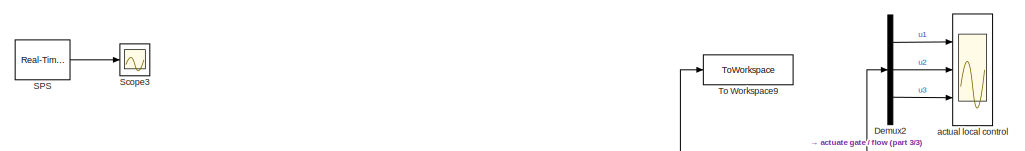
[diagram: root canvas - part 1/3, top left region]
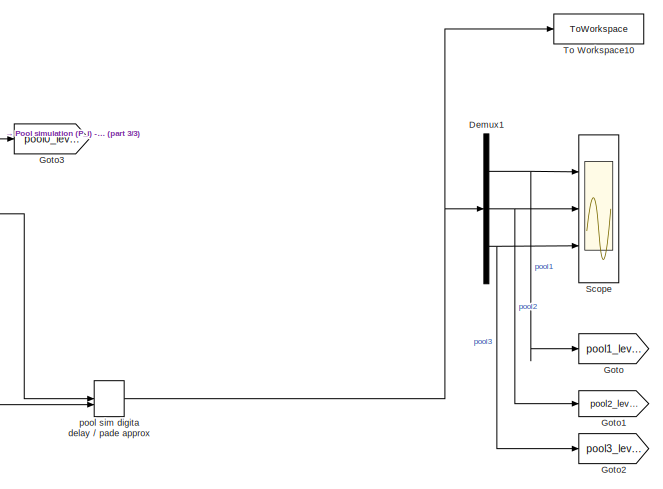
[diagram: root canvas - part 2/3, middle right region]
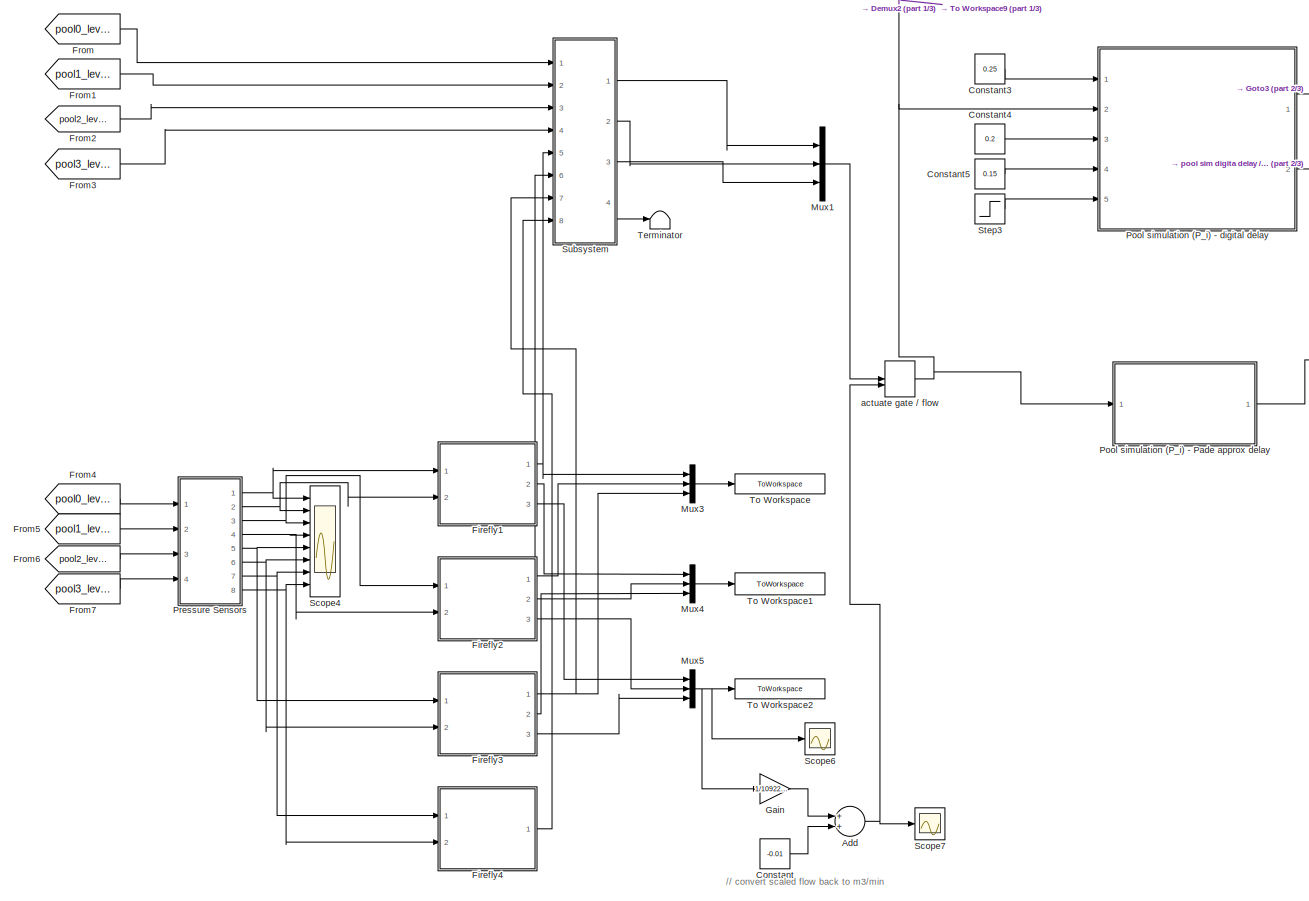
[diagram: root canvas - part 3/3, left side, full height]
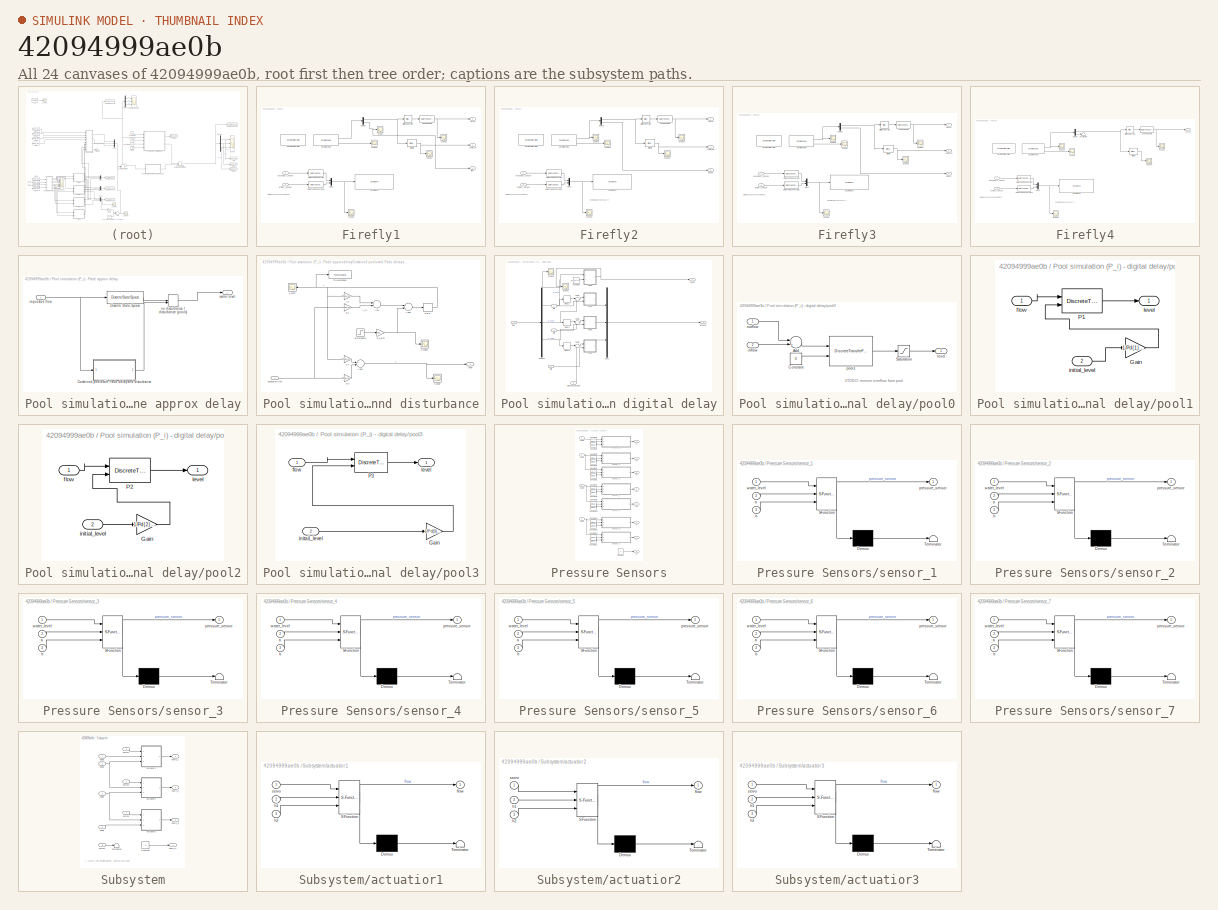
[diagram: thumbnail index - all 24 canvases of the model, root first then tree order]
MODEL slx_42094999ae0b
KIND model
CONFIG AbsTol = auto
CONFIG EnableMultiTasking = off
CONFIG FixedStep = 1/SPS
CONFIG MaxStep = auto
CONFIG MinStep = auto
CONFIG RelTol = 1e-3
CONFIG SampleTimeConstraint = Unconstrained
CONFIG Solver = FixedStepDiscrete
CONFIG SolverName = FixedStepDiscrete
CONFIG StartTime = 0.0
CONFIG StopTime = 60*30
BLOCK [Sum] Add
  InputSameDT = off
  OutDataTypeStr = Inherit: Inherit via internal rule
  Ports = [2, 1]
  SaturateOnIntegerOverflow = off
BLOCK [Constant] Constant
  Value = -0.01
BLOCK [Constant] Constant3
  SampleTime = -1
  Value = 0.25
BLOCK [Constant] Constant4
  Value = 0.2
BLOCK [Constant] Constant5
  Value = 0.15
BLOCK [Demux] Demux1
  DisplayOption = bar
  Outputs = 3
  Ports = [1, 3]
BLOCK [Demux] Demux2
  DisplayOption = bar
  Outputs = 3
  Ports = [1, 3]
BLOCK [SubSystem] Firefly1
  Ports = [2, 3]
  RequestExecContextInheritance = off
BLOCK [Reference] Firefly1/Bit Shift  REF=hdlsllib/Logic and Bit
Operations/Bit Shift
  Ports = [1, 1]
  SourceBlock = hdlsllib/Logic and Bit\nOperations/Bit Shift
  SourceProductBaseCode = SL
  SourceProductName = Simulink
  SourceType = Bit Shift
BLOCK [Reference] Firefly1/Bitwise Operator  REF=simulink/Logic and Bit
Operations/Bitwise
Operator
  Ports = [1, 1]
  SourceBlock = simulink/Logic and Bit\nOperations/Bitwise\nOperator
  SourceProductBaseCode = SL
  SourceProductName = Simulink
  SourceType = Bitwise Operator
BLOCK [DataTypeConversion] Firefly1/Cast To Double
  OutDataTypeStr = double
  RndMeth = Floor
  SaturateOnIntegerOverflow = off
BLOCK [DataTypeConversion] Firefly1/Data Type Conversion
  OutDataTypeStr = uint16
  RndMeth = Floor
  SaturateOnIntegerOverflow = off
BLOCK [DataTypeConversion] Firefly1/Data Type Conversion1
  OutDataTypeStr = uint16
  RndMeth = Floor
  SaturateOnIntegerOverflow = off
BLOCK [Demux] Firefly1/Demux
  DisplayOption = bar
  Outputs = 2
  Ports = [1, 2]
BLOCK [Mux] Firefly1/Mux3
  DisplayOption = bar
  Inputs = 2
  Ports = [2, 1]
BLOCK [Scope] Firefly1/Scope
  Floating = off
  NumInputPorts = 1
  Ports = [1]
  ScopeSpecificationString = Simulink.scopes.TimeScopeBlockCfg('CurrentConfiguration', extmgr.ConfigurationSet(extmgr.Configuration('Core','General UI',true),extmgr.Configuration('Core','Source UI',true),extmgr.Configuration('Sources','WiredSimulink',true,'DataLoggingVariableName','ScopeData1'),extmgr.Configuration('Visuals','Time Domain',true,'SerializedDisplays',{struct('MinYLimReal','150.375','MaxYLimReal','666.625','YLabe...<+1392ch>
BLOCK [Scope] Firefly1/Scope1
  Floating = off
  NumInputPorts = 1
  Ports = [1]
  ScopeSpecificationString = Simulink.scopes.TimeScopeBlockCfg('CurrentConfiguration', extmgr.ConfigurationSet(extmgr.Configuration('Core','General UI',true),extmgr.Configuration('Core','Source UI',true),extmgr.Configuration('Sources','WiredSimulink',true,'DataLoggingVariableName','ScopeData2'),extmgr.Configuration('Visuals','Time Domain',true,'SerializedDisplays',{struct('MinYLimReal','-2.125','MaxYLimReal','19.125','YLabelR...<+1429ch>
BLOCK [Scope] Firefly1/Scope2
  Floating = off
  NumInputPorts = 1
  Ports = [1]
  ScopeSpecificationString = Simulink.scopes.TimeScopeBlockCfg('CurrentConfiguration', extmgr.ConfigurationSet(extmgr.Configuration('Core','General UI',true),extmgr.Configuration('Core','Source UI',true),extmgr.Configuration('Sources','WiredSimulink',true,'DataLoggingVariableName','ScopeData3'),extmgr.Configuration('Visuals','Time Domain',true,'SerializedDisplays',{struct('MinYLimReal','0.5','MaxYLimReal','145.5','YLabelReal'...<+1388ch>
BLOCK [Scope] Firefly1/Scope5
  Floating = off
  NumInputPorts = 1
  Ports = [1]
  ScopeSpecificationString = Simulink.scopes.TimeScopeBlockCfg('CurrentConfiguration', extmgr.ConfigurationSet(extmgr.Configuration('Core','General UI',true),extmgr.Configuration('Core','Source UI',true),extmgr.Configuration('Sources','WiredSimulink',true,'DataLoggingVariableName','ScopeData2'),extmgr.Configuration('Visuals','Time Domain',true,'SerializedDisplays',{struct('MinYLimReal','-0.25','MaxYLimReal','2.25','YLabelReal...<+1429ch>  <repeated x3 — deduplicated; at blocks: Scope5>
BLOCK [Scope] Firefly1/Scope6
  Floating = off
  NumInputPorts = 1
  Ports = [1]
  ScopeSpecificationString = Simulink.scopes.TimeScopeBlockCfg('CurrentConfiguration', extmgr.ConfigurationSet(extmgr.Configuration('Core','General UI',true),extmgr.Configuration('Core','Source UI',true),extmgr.Configuration('Sources','WiredSimulink',true,'DataLoggingVariableName','ScopeData3'),extmgr.Configuration('Visuals','Time Domain',true,'SerializedDisplays',{struct('MinYLimReal','-0.125','MaxYLimReal','1.125','YLabelRe...<+1398ch>
BLOCK [Reference] Firefly1/Serial Configuration  REF=instrumentlib/Serial Configuration
  Ports = []
  Priority = -200000
  SourceBlock = instrumentlib/Serial Configuration
  SourceProductBaseCode = IC
  SourceProductName = Instrument Control Toolbox
  SourceType = Serial Configuration
BLOCK [Reference] Firefly1/Serial Receive  REF=instrumentlib/Serial Receive
  Ports = [0, 2]
  SourceBlock = instrumentlib/Serial Receive
  SourceProductBaseCode = IC
  SourceProductName = Instrument Control Toolbox
  SourceType = Serial Receive
BLOCK [Reference] Firefly1/Serial Send  REF=instrumentlib/Serial Send
  Ports = [1]
  SourceBlock = instrumentlib/Serial Send
  SourceProductBaseCode = IC
  SourceProductName = Instrument Control Toolbox
  SourceType = Serial Send
BLOCK [Outport] Firefly1/flow
  IconDisplay = Port number
  Port = 3
BLOCK [Inport] Firefly1/primary_sensor
  IconDisplay = Port number
BLOCK [Outport] Firefly1/radio_on
  IconDisplay = Port number
  Port = 2
BLOCK [Inport] Firefly1/secondary_sensor
  IconDisplay = Port number
  Port = 2
BLOCK [Outport] Firefly1/servo 
  IconDisplay = Port number
BLOCK [SubSystem] Firefly2
  Ports = [2, 3]
  RequestExecContextInheritance = off
BLOCK [Reference] Firefly2/Bit Shift  REF=hdlsllib/Logic and Bit
Operations/Bit Shift
  Ports = [1, 1]
  SourceBlock = hdlsllib/Logic and Bit\nOperations/Bit Shift
  SourceProductBaseCode = SL
  SourceProductName = Simulink
  SourceType = Bit Shift
BLOCK [Reference] Firefly2/Bitwise Operator  REF=simulink/Logic and Bit
Operations/Bitwise
Operator
  Ports = [1, 1]
  SourceBlock = simulink/Logic and Bit\nOperations/Bitwise\nOperator
  SourceProductBaseCode = SL
  SourceProductName = Simulink
  SourceType = Bitwise Operator
BLOCK [DataTypeConversion] Firefly2/Cast To Double
  OutDataTypeStr = double
  RndMeth = Floor
  SaturateOnIntegerOverflow = off
BLOCK [DataTypeConversion] Firefly2/Data Type Conversion
  OutDataTypeStr = uint16
  RndMeth = Floor
  SaturateOnIntegerOverflow = off
BLOCK [DataTypeConversion] Firefly2/Data Type Conversion1
  OutDataTypeStr = uint16
  RndMeth = Floor
  SaturateOnIntegerOverflow = off
BLOCK [Demux] Firefly2/Demux
  DisplayOption = bar
  Outputs = 2
  Ports = [1, 2]
BLOCK [Mux] Firefly2/Mux3
  DisplayOption = bar
  Inputs = 2
  Ports = [2, 1]
BLOCK [Scope] Firefly2/Scope1
  Floating = off
  NumInputPorts = 1
  Ports = [1]
  ScopeSpecificationString = Simulink.scopes.TimeScopeBlockCfg('CurrentConfiguration', extmgr.ConfigurationSet(extmgr.Configuration('Core','General UI',true),extmgr.Configuration('Core','Source UI',true),extmgr.Configuration('Sources','WiredSimulink',true,'DataLoggingVariableName','ScopeData4'),extmgr.Configuration('Visuals','Time Domain',true,'SerializedDisplays',{struct('MinYLimReal','-13.25','MaxYLimReal','119.25','YLabelR...<+1429ch>
BLOCK [Scope] Firefly2/Scope2
  Floating = off
  NumInputPorts = 1
  Ports = [1]
  ScopeSpecificationString = Simulink.scopes.TimeScopeBlockCfg('CurrentConfiguration', extmgr.ConfigurationSet(extmgr.Configuration('Core','General UI',true),extmgr.Configuration('Core','Source UI',true),extmgr.Configuration('Sources','WiredSimulink',true,'DataLoggingVariableName','ScopeData5'),extmgr.Configuration('Visuals','Time Domain',true,'SerializedDisplays',{struct('MinYLimReal','0.625','MaxYLimReal','144.375','YLabelR...<+1404ch>
BLOCK [Scope] Firefly2/Scope3
  Floating = off
  NumInputPorts = 1
  Ports = [1]
  ScopeSpecificationString = Simulink.scopes.TimeScopeBlockCfg('CurrentConfiguration', extmgr.ConfigurationSet(extmgr.Configuration('Core','General UI',true),extmgr.Configuration('Core','Source UI',true),extmgr.Configuration('Sources','WiredSimulink',true,'DataLoggingVariableName','ScopeData1'),extmgr.Configuration('Visuals','Time Domain',true,'SerializedDisplays',{struct('MinYLimReal','-2204.75','MaxYLimReal','21862.75','YLa...<+1433ch>
BLOCK [Scope] Firefly2/Scope5
  Floating = off
  NumInputPorts = 1
  Ports = [1]
BLOCK [Scope] Firefly2/Scope6
  Floating = off
  NumInputPorts = 1
  Ports = [1]
  ScopeSpecificationString = Simulink.scopes.TimeScopeBlockCfg('CurrentConfiguration', extmgr.ConfigurationSet(extmgr.Configuration('Core','General UI',true),extmgr.Configuration('Core','Source UI',true),extmgr.Configuration('Sources','WiredSimulink',true,'DataLoggingVariableName','ScopeData3'),extmgr.Configuration('Visuals','Time Domain',true,'SerializedDisplays',{struct('MinYLimReal','-0.125','MaxYLimReal','1.125','YLabelRe...<+1363ch>
BLOCK [Reference] Firefly2/Serial Configuration  REF=instrumentlib/Serial Configuration
  Ports = []
  Priority = -200000
  SourceBlock = instrumentlib/Serial Configuration
  SourceProductBaseCode = IC
  SourceProductName = Instrument Control Toolbox
  SourceType = Serial Configuration
BLOCK [Reference] Firefly2/Serial Receive  REF=instrumentlib/Serial Receive
  Ports = [0, 2]
  SourceBlock = instrumentlib/Serial Receive
  SourceProductBaseCode = IC
  SourceProductName = Instrument Control Toolbox
  SourceType = Serial Receive
BLOCK [Reference] Firefly2/Serial Send  REF=instrumentlib/Serial Send
  Ports = [1]
  SourceBlock = instrumentlib/Serial Send
  SourceProductBaseCode = IC
  SourceProductName = Instrument Control Toolbox
  SourceType = Serial Send
BLOCK [Outport] Firefly2/epoch
  IconDisplay = Port number
  Port = 3
BLOCK [Inport] Firefly2/primary_sensor
  IconDisplay = Port number
BLOCK [Outport] Firefly2/radio_on
  IconDisplay = Port number
  Port = 2
BLOCK [Inport] Firefly2/secondary_sensor
  IconDisplay = Port number
  Port = 2
BLOCK [Outport] Firefly2/servo 
  IconDisplay = Port number
BLOCK [SubSystem] Firefly3
  Ports = [2, 3]
  RequestExecContextInheritance = off
BLOCK [Reference] Firefly3/Bit Shift  REF=hdlsllib/Logic and Bit
Operations/Bit Shift
  Ports = [1, 1]
  SourceBlock = hdlsllib/Logic and Bit\nOperations/Bit Shift
  SourceProductBaseCode = SL
  SourceProductName = Simulink
  SourceType = Bit Shift
BLOCK [Reference] Firefly3/Bitwise Operator  REF=simulink/Logic and Bit
Operations/Bitwise
Operator
  Ports = [1, 1]
  SourceBlock = simulink/Logic and Bit\nOperations/Bitwise\nOperator
  SourceProductBaseCode = SL
  SourceProductName = Simulink
  SourceType = Bitwise Operator
BLOCK [DataTypeConversion] Firefly3/Cast To Double
  OutDataTypeStr = double
  RndMeth = Floor
  SaturateOnIntegerOverflow = off
BLOCK [DataTypeConversion] Firefly3/Data Type Conversion
  OutDataTypeStr = uint16
  RndMeth = Floor
  SaturateOnIntegerOverflow = off
BLOCK [DataTypeConversion] Firefly3/Data Type Conversion1
  OutDataTypeStr = uint16
  RndMeth = Floor
  SaturateOnIntegerOverflow = off
BLOCK [Demux] Firefly3/Demux
  DisplayOption = bar
  Outputs = 2
  Ports = [1, 2]
BLOCK [Mux] Firefly3/Mux3
  DisplayOption = bar
  Inputs = 2
  Ports = [2, 1]
BLOCK [Scope] Firefly3/Scope1
  Floating = off
  NumInputPorts = 1
  Ports = [1]
  ScopeSpecificationString = Simulink.scopes.TimeScopeBlockCfg('CurrentConfiguration', extmgr.ConfigurationSet(extmgr.Configuration('Core','General UI',true),extmgr.Configuration('Core','Source UI',true),extmgr.Configuration('Sources','WiredSimulink',true,'DataLoggingVariableName','ScopeData6'),extmgr.Configuration('Visuals','Time Domain',true,'SerializedDisplays',{struct('MinYLimReal','-3.25','MaxYLimReal','29.25','YLabelRea...<+1421ch>
BLOCK [Scope] Firefly3/Scope2
  Floating = off
  NumInputPorts = 1
  Ports = [1]
  ScopeSpecificationString = Simulink.scopes.TimeScopeBlockCfg('CurrentConfiguration', extmgr.ConfigurationSet(extmgr.Configuration('Core','General UI',true),extmgr.Configuration('Core','Source UI',true),extmgr.Configuration('Sources','WiredSimulink',true,'DataLoggingVariableName','ScopeData7'),extmgr.Configuration('Visuals','Time Domain',true,'SerializedDisplays',{struct('MinYLimReal','0.625','MaxYLimReal','144.375','YLabelR...<+1402ch>
BLOCK [Scope] Firefly3/Scope3
  Floating = off
  NumInputPorts = 1
  Ports = [1]
  ScopeSpecificationString = Simulink.scopes.TimeScopeBlockCfg('CurrentConfiguration', extmgr.ConfigurationSet(extmgr.Configuration('Core','General UI',true),extmgr.Configuration('Core','Source UI',true),extmgr.Configuration('Sources','WiredSimulink',true,'DataLoggingVariableName','ScopeData1'),extmgr.Configuration('Visuals','Time Domain',true,'SerializedDisplays',{struct('MinYLimReal','-2238.125','MaxYLimReal','22163.125','Y...<+1437ch>
BLOCK [Scope] Firefly3/Scope5
  Floating = off
  NumInputPorts = 1
  Ports = [1]
  ScopeSpecificationString = Simulink.scopes.TimeScopeBlockCfg('CurrentConfiguration', extmgr.ConfigurationSet(extmgr.Configuration('Core','General UI',true),extmgr.Configuration('Core','Source UI',true),extmgr.Configuration('Sources','WiredSimulink',true,'DataLoggingVariableName','ScopeData2'),extmgr.Configuration('Visuals','Time Domain',true,'SerializedDisplays',{struct('MinYLimReal','-2108.00000','MaxYLimReal','18972.00000...<+1473ch>
BLOCK [Scope] Firefly3/Scope6
  Floating = off
  NumInputPorts = 1
  Ports = [1]
  ScopeSpecificationString = Simulink.scopes.TimeScopeBlockCfg('CurrentConfiguration', extmgr.ConfigurationSet(extmgr.Configuration('Core','General UI',true),extmgr.Configuration('Core','Source UI',true),extmgr.Configuration('Sources','WiredSimulink',true,'DataLoggingVariableName','ScopeData3'),extmgr.Configuration('Visuals','Time Domain',true,'SerializedDisplays',{struct('MinYLimReal','0.9','MaxYLimReal','1.1','YLabelReal','...<+1341ch>
BLOCK [Reference] Firefly3/Serial Configuration  REF=instrumentlib/Serial Configuration
  Ports = []
  Priority = -200000
  SourceBlock = instrumentlib/Serial Configuration
  SourceProductBaseCode = IC
  SourceProductName = Instrument Control Toolbox
  SourceType = Serial Configuration
BLOCK [Reference] Firefly3/Serial Receive  REF=instrumentlib/Serial Receive
  Ports = [0, 2]
  SourceBlock = instrumentlib/Serial Receive
  SourceProductBaseCode = IC
  SourceProductName = Instrument Control Toolbox
  SourceType = Serial Receive
BLOCK [Reference] Firefly3/Serial Send  REF=instrumentlib/Serial Send
  Ports = [1]
  SourceBlock = instrumentlib/Serial Send
  SourceProductBaseCode = IC
  SourceProductName = Instrument Control Toolbox
  SourceType = Serial Send
BLOCK [Outport] Firefly3/epoch
  IconDisplay = Port number
  Port = 3
BLOCK [Inport] Firefly3/primary_sensor
  IconDisplay = Port number
BLOCK [Outport] Firefly3/radio_on
  IconDisplay = Port number
  Port = 2
BLOCK [Inport] Firefly3/secondary_sensor
  IconDisplay = Port number
  Port = 2
BLOCK [Outport] Firefly3/servo 
  IconDisplay = Port number
BLOCK [SubSystem] Firefly4
  Ports = [2, 1]
  RequestExecContextInheritance = off
BLOCK [Reference] Firefly4/Bit Shift  REF=hdlsllib/Logic and Bit
Operations/Bit Shift
  Ports = [1, 1]
  SourceBlock = hdlsllib/Logic and Bit\nOperations/Bit Shift
  SourceProductBaseCode = SL
  SourceProductName = Simulink
  SourceType = Bit Shift
BLOCK [Reference] Firefly4/Bitwise Operator  REF=simulink/Logic and Bit
Operations/Bitwise
Operator
  Ports = [1, 1]
  SourceBlock = simulink/Logic and Bit\nOperations/Bitwise\nOperator
  SourceProductBaseCode = SL
  SourceProductName = Simulink
  SourceType = Bitwise Operator
BLOCK [DataTypeConversion] Firefly4/Cast To Double
  OutDataTypeStr = double
  RndMeth = Floor
  SaturateOnIntegerOverflow = off
BLOCK [DataTypeConversion] Firefly4/Data Type Conversion
  OutDataTypeStr = uint16
  RndMeth = Floor
  SaturateOnIntegerOverflow = off
BLOCK [DataTypeConversion] Firefly4/Data Type Conversion1
  OutDataTypeStr = uint16
  RndMeth = Floor
  SaturateOnIntegerOverflow = off
BLOCK [Demux] Firefly4/Demux
  DisplayOption = bar
  Outputs = 2
  Ports = [1, 2]
BLOCK [Mux] Firefly4/Mux3
  DisplayOption = bar
  Inputs = 2
  Ports = [2, 1]
BLOCK [Scope] Firefly4/Scope1
  Floating = off
  NumInputPorts = 1
  Ports = [1]
  ScopeSpecificationString = Simulink.scopes.TimeScopeBlockCfg('CurrentConfiguration', extmgr.ConfigurationSet(extmgr.Configuration('Core','General UI',true),extmgr.Configuration('Core','Source UI',true),extmgr.Configuration('Sources','WiredSimulink',true,'DataLoggingVariableName','ScopeData8'),extmgr.Configuration('Visuals','Time Domain',true,'SerializedDisplays',{struct('MinYLimReal','-1.00000','MaxYLimReal','1.00000','YLab...<+1399ch>
BLOCK [Scope] Firefly4/Scope2
  Floating = off
  NumInputPorts = 1
  Ports = [1]
  ScopeSpecificationString = Simulink.scopes.TimeScopeBlockCfg('CurrentConfiguration', extmgr.ConfigurationSet(extmgr.Configuration('Core','General UI',true),extmgr.Configuration('Core','Source UI',true),extmgr.Configuration('Sources','WiredSimulink',true,'DataLoggingVariableName','ScopeData9'),extmgr.Configuration('Visuals','Time Domain',true,'SerializedDisplays',{struct('MinYLimReal','7.25','MaxYLimReal','84.75','YLabelReal...<+1373ch>
BLOCK [Scope] Firefly4/Scope3
  Floating = off
  NumInputPorts = 1
  Ports = [1]
  ScopeSpecificationString = Simulink.scopes.TimeScopeBlockCfg('CurrentConfiguration', extmgr.ConfigurationSet(extmgr.Configuration('Core','General UI',true),extmgr.Configuration('Core','Source UI',true),extmgr.Configuration('Sources','WiredSimulink',true,'DataLoggingVariableName','ScopeData1'),extmgr.Configuration('Visuals','Time Domain',true,'SerializedDisplays',{struct('MinYLimReal','-30.75','MaxYLimReal','286.75','YLabelR...<+1390ch>
BLOCK [Scope] Firefly4/Scope5
  Floating = off
  NumInputPorts = 1
  Ports = [1]
BLOCK [Scope] Firefly4/Scope6
  Floating = off
  NumInputPorts = 1
  Ports = [1]
  ScopeSpecificationString = Simulink.scopes.TimeScopeBlockCfg('CurrentConfiguration', extmgr.ConfigurationSet(extmgr.Configuration('Core','General UI',true),extmgr.Configuration('Core','Source UI',true),extmgr.Configuration('Sources','WiredSimulink',true,'DataLoggingVariableName','ScopeData3'),extmgr.Configuration('Visuals','Time Domain',true,'SerializedDisplays',{struct('MinYLimReal','0.9','MaxYLimReal','1.1','YLabelReal','...<+1341ch>
BLOCK [Reference] Firefly4/Serial Configuration  REF=instrumentlib/Serial Configuration
  Ports = []
  Priority = -200000
  SourceBlock = instrumentlib/Serial Configuration
  SourceProductBaseCode = IC
  SourceProductName = Instrument Control Toolbox
  SourceType = Serial Configuration
BLOCK [Reference] Firefly4/Serial Receive  REF=instrumentlib/Serial Receive
  Ports = [0, 2]
  SourceBlock = instrumentlib/Serial Receive
  SourceProductBaseCode = IC
  SourceProductName = Instrument Control Toolbox
  SourceType = Serial Receive
BLOCK [Reference] Firefly4/Serial Send  REF=instrumentlib/Serial Send
  Ports = [1]
  SourceBlock = instrumentlib/Serial Send
  SourceProductBaseCode = IC
  SourceProductName = Instrument Control Toolbox
  SourceType = Serial Send
BLOCK [Terminator] Firefly4/Terminator
BLOCK [Inport] Firefly4/primary_sensor
  IconDisplay = Port number
BLOCK [Inport] Firefly4/secondary_sensor
  IconDisplay = Port number
  Port = 2
BLOCK [Outport] Firefly4/servo 
  IconDisplay = Port number
BLOCK [From] From
  GotoTag = pool0_level
BLOCK [From] From1
  GotoTag = pool1_level
BLOCK [From] From2
  GotoTag = pool2_level
BLOCK [From] From3
  GotoTag = pool3_level
BLOCK [From] From4
  GotoTag = pool0_level
BLOCK [From] From5
  GotoTag = pool1_level
BLOCK [From] From6
  GotoTag = pool2_level
BLOCK [From] From7
  GotoTag = pool3_level
BLOCK [Gain] Gain
  Gain = 1/1092250
  OutDataTypeStr = Inherit: Inherit via internal rule
  ParamDataTypeStr = Inherit: Inherit via internal rule
  SaturateOnIntegerOverflow = off
BLOCK [Goto] Goto
  GotoTag = pool1_level
BLOCK [Goto] Goto1
  GotoTag = pool2_level
BLOCK [Goto] Goto2
  GotoTag = pool3_level
BLOCK [Goto] Goto3
  GotoTag = pool0_level
BLOCK [Mux] Mux1
  DisplayOption = bar
  Inputs = 3
  Ports = [3, 1]
BLOCK [Mux] Mux3
  DisplayOption = bar
  Inputs = 3
  Ports = [3, 1]
BLOCK [Mux] Mux4
  DisplayOption = bar
  Inputs = 3
  Ports = [3, 1]
BLOCK [Mux] Mux5
  DisplayOption = bar
  Inputs = 3
  Ports = [3, 1]
BLOCK [SubSystem] Pool simulation (P_i) - Pade approx delay
  Ports = [1, 1]
  RequestExecContextInheritance = off
BLOCK [SubSystem] Pool simulation (P_i) - Pade approx delay/Combined pools with Pade delay and disturbance
  Ports = [1, 1]
  RequestExecContextInheritance = off
BLOCK [Sum] Pool simulation (P_i) - Pade approx delay/Combined pools with Pade delay and disturbance/Add
  InputSameDT = off
  OutDataTypeStr = Inherit: Inherit via internal rule
  Ports = [2, 1]
  SaturateOnIntegerOverflow = off
BLOCK [Sum] Pool simulation (P_i) - Pade approx delay/Combined pools with Pade delay and disturbance/Add1
  InputSameDT = off
  OutDataTypeStr = Inherit: Inherit via internal rule
  Ports = [2, 1]
  SaturateOnIntegerOverflow = off
BLOCK [Sum] Pool simulation (P_i) - Pade approx delay/Combined pools with Pade delay and disturbance/Add2
  InputSameDT = off
  OutDataTypeStr = Inherit: Inherit via internal rule
  Ports = [2, 1]
  SaturateOnIntegerOverflow = off
BLOCK [Gain] Pool simulation (P_i) - Pade approx delay/Combined pools with Pade delay and disturbance/Ax
  Gain = comb_Pool_disc.A
  Multiplication = Matrix(K*u)
  OutDataTypeStr = Inherit: Inherit via internal rule
  ParamDataTypeStr = Inherit: Inherit via internal rule
  SaturateOnIntegerOverflow = off
BLOCK [Gain] Pool simulation (P_i) - Pade approx delay/Combined pools with Pade delay and disturbance/Bu
  Gain = comb_Pool_disc.B
  Multiplication = Matrix(K*u)
  OutDataTypeStr = Inherit: Inherit via internal rule
  ParamDataTypeStr = Inherit: Inherit via internal rule
  SaturateOnIntegerOverflow = off
BLOCK [Gain] Pool simulation (P_i) - Pade approx delay/Combined pools with Pade delay and disturbance/Cx
  Gain = comb_Pool_disc.C
  Multiplication = Matrix(K*u)
  OutDataTypeStr = Inherit: Inherit via internal rule
  ParamDataTypeStr = Inherit: Inherit via internal rule
  SaturateOnIntegerOverflow = off
BLOCK [Delay] Pool simulation (P_i) - Pade approx delay/Combined pools with Pade delay and disturbance/Delay
  DelayLength = 1
  InitialCondition = [0.25;0;0.2;0;0.15;0]
  InputPortMap = u0
  Ports = [1, 1]
BLOCK [Gain] Pool simulation (P_i) - Pade approx delay/Combined pools with Pade delay and disturbance/Du
  Gain = comb_Pool_disc.D
  Multiplication = Matrix(K*u)
  OutDataTypeStr = Inherit: Inherit via internal rule
  ParamDataTypeStr = Inherit: Inherit via internal rule
  SaturateOnIntegerOverflow = off
BLOCK [Gain] Pool simulation (P_i) - Pade approx delay/Combined pools with Pade delay and disturbance/Eu_dist
  Gain = [0; 0; 0; 0; 1; 0];
  Multiplication = Matrix(K*u)
  OutDataTypeStr = Inherit: Inherit via internal rule
  ParamDataTypeStr = Inherit: Inherit via internal rule
  SaturateOnIntegerOverflow = off
BLOCK [Scope] Pool simulation (P_i) - Pade approx delay/Combined pools with Pade delay and disturbance/Scope
  Floating = off
  NumInputPorts = 1
  Ports = [1]
  ScopeSpecificationString = Simulink.scopes.TimeScopeBlockCfg('CurrentConfiguration', extmgr.ConfigurationSet(extmgr.Configuration('Core','General UI',true),extmgr.Configuration('Core','Source UI',true),extmgr.Configuration('Sources','WiredSimulink',true,'DataLoggingVariableName','ScopeData1'),extmgr.Configuration('Visuals','Time Domain',true,'SerializedDisplays',{struct('MinYLimReal','0.12122','MaxYLimReal','0.26431','YLabe...<+1401ch>
BLOCK [Scope] Pool simulation (P_i) - Pade approx delay/Combined pools with Pade delay and disturbance/Scope1
  Floating = off
  NumInputPorts = 1
  Ports = [1]
  ScopeSpecificationString = Simulink.scopes.TimeScopeBlockCfg('CurrentConfiguration', extmgr.ConfigurationSet(extmgr.Configuration('Core','General UI',true),extmgr.Configuration('Core','Source UI',true),extmgr.Configuration('Sources','WiredSimulink',true,'DataLoggingVariableName','ScopeData2'),extmgr.Configuration('Visuals','Time Domain',true,'SerializedDisplays',{struct('MinYLimReal','-0.00123','MaxYLimReal','0.00014','YLab...<+1504ch>
BLOCK [ToWorkspace] Pool simulation (P_i) - Pade approx delay/Combined pools with Pade delay and disturbance/To Workspace
  FixptAsFi = on
  MaxDataPoints = inf
  Ports = [1]
  SampleTime = -1
  SaveFormat = Timeseries
  VariableName = x_pools
BLOCK [Step] Pool simulation (P_i) - Pade approx delay/Combined pools with Pade delay and disturbance/disturbance
  After = -0.015/0.2279*1/60* 1/SPS
  SampleTime = 0
  Time = 20
BLOCK [Outport] Pool simulation (P_i) - Pade approx delay/Combined pools with Pade delay and disturbance/level
  IconDisplay = Port number
BLOCK [Inport] Pool simulation (P_i) - Pade approx delay/Combined pools with Pade delay and disturbance/requested flow
  IconDisplay = Port number
BLOCK [Scope] Pool simulation (P_i) - Pade approx delay/Combined pools with Pade delay and disturbance/x_contr
  Floating = off
  NumInputPorts = 1
  Ports = [1]
  ScopeSpecificationString = Simulink.scopes.TimeScopeBlockCfg('CurrentConfiguration', extmgr.ConfigurationSet(extmgr.Configuration('Core','General UI',true),extmgr.Configuration('Core','Source UI',true),extmgr.Configuration('Sources','WiredSimulink',true,'DataLoggingVariableName','ScopeData4'),extmgr.Configuration('Visuals','Time Domain',true,'SerializedDisplays',{struct('MinYLimReal','-1.45192','MaxYLimReal','0.51843','YLab...<+1509ch>
BLOCK [DiscreteStateSpace] Pool simulation (P_i) - Pade approx delay/Discrete State-Space
  A = comb_Pool_disc.A
  B = comb_Pool_disc.B
  C = comb_Pool_disc.C
  D = comb_Pool_disc.D
  SampleTime = -1
BLOCK [ManualSwitch] Pool simulation (P_i) - Pade approx delay/no disturbance // disturbance (pools)
  CurrentSetting = 0
BLOCK [Inport] Pool simulation (P_i) - Pade approx delay/requested flow
  IconDisplay = Port number
BLOCK [Outport] Pool simulation (P_i) - Pade approx delay/water level
  IconDisplay = Port number
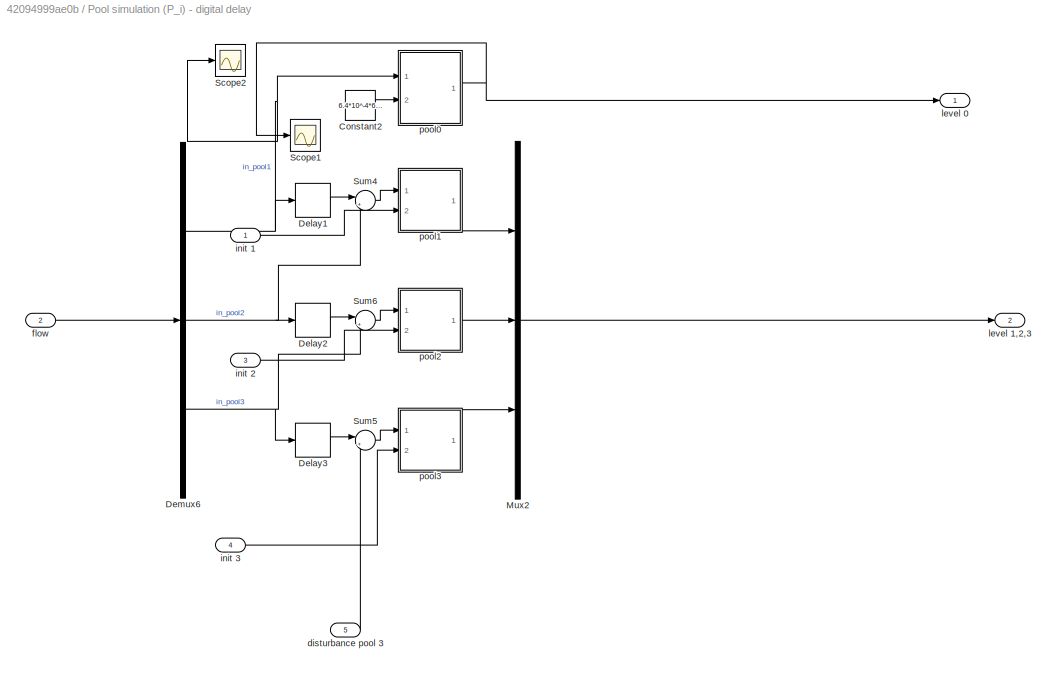
BLOCK [SubSystem] Pool simulation (P_i) - digital delay
  Ports = [5, 2]
  RequestExecContextInheritance = off
BLOCK [Constant] Pool simulation (P_i) - digital delay/Constant2
  Value = 6.4*10^-4*60*10
BLOCK [Delay] Pool simulation (P_i) - digital delay/Delay1
  DelayLength = ddelay(1)
  InputPortMap = u0
  Ports = [1, 1]
BLOCK [Delay] Pool simulation (P_i) - digital delay/Delay2
  DelayLength = ddelay(2)
  InputPortMap = u0
  Ports = [1, 1]
BLOCK [Delay] Pool simulation (P_i) - digital delay/Delay3
  DelayLength = ddelay(3)
  InputPortMap = u0
  Ports = [1, 1]
BLOCK [Demux] Pool simulation (P_i) - digital delay/Demux6
  DisplayOption = bar
  Outputs = 3
  Ports = [1, 3]
BLOCK [Mux] Pool simulation (P_i) - digital delay/Mux2
  DisplayOption = bar
  Inputs = 3
  Ports = [3, 1]
BLOCK [Scope] Pool simulation (P_i) - digital delay/Scope1
  Floating = off
  NumInputPorts = 1
  Ports = [1]
  ScopeSpecificationString = Simulink.scopes.TimeScopeBlockCfg('CurrentConfiguration', extmgr.ConfigurationSet(extmgr.Configuration('Core','General UI',true),extmgr.Configuration('Core','Source UI',true),extmgr.Configuration('Sources','WiredSimulink',true,'DataLoggingVariableName','ScopeData2'),extmgr.Configuration('Visuals','Time Domain',true,'SerializedDisplays',{struct('MinYLimReal','-0.0375','MaxYLimReal','0.3375','YLabel...<+1358ch>
BLOCK [Scope] Pool simulation (P_i) - digital delay/Scope2
  Floating = off
  NumInputPorts = 1
  Ports = [1]
  ScopeSpecificationString = Simulink.scopes.TimeScopeBlockCfg('CurrentConfiguration', extmgr.ConfigurationSet(extmgr.Configuration('Core','General UI',true),extmgr.Configuration('Core','Source UI',true),extmgr.Configuration('Sources','WiredSimulink',true,'DataLoggingVariableName','ScopeData3'),extmgr.Configuration('Visuals','Time Domain',true,'SerializedDisplays',{struct('MinYLimReal','-0.02371','MaxYLimReal','0.12911','YLab...<+1367ch>
BLOCK [Sum] Pool simulation (P_i) - digital delay/Sum4
  IconShape = round
  InputSameDT = off
  Inputs = |+-
  OutDataTypeStr = Inherit: Inherit via internal rule
  Ports = [2, 1]
  SaturateOnIntegerOverflow = off
BLOCK [Sum] Pool simulation (P_i) - digital delay/Sum5
  IconShape = round
  InputSameDT = off
  Inputs = |++
  OutDataTypeStr = Inherit: Inherit via internal rule
  Ports = [2, 1]
  SaturateOnIntegerOverflow = off
BLOCK [Sum] Pool simulation (P_i) - digital delay/Sum6
  IconShape = round
  InputSameDT = off
  Inputs = |+-
  OutDataTypeStr = Inherit: Inherit via internal rule
  Ports = [2, 1]
  SaturateOnIntegerOverflow = off
BLOCK [Inport] Pool simulation (P_i) - digital delay/disturbance pool 3
  IconDisplay = Port number
  Port = 5
BLOCK [Inport] Pool simulation (P_i) - digital delay/flow
  IconDisplay = Port number
  Port = 2
BLOCK [Inport] Pool simulation (P_i) - digital delay/init 1
  IconDisplay = Port number
BLOCK [Inport] Pool simulation (P_i) - digital delay/init 2
  IconDisplay = Port number
  Port = 3
BLOCK [Inport] Pool simulation (P_i) - digital delay/init 3
  IconDisplay = Port number
  Port = 4
BLOCK [Outport] Pool simulation (P_i) - digital delay/level 0
  IconDisplay = Port number
BLOCK [Outport] Pool simulation (P_i) - digital delay/level 1,2,3
  IconDisplay = Port number
  Port = 2
BLOCK [SubSystem] Pool simulation (P_i) - digital delay/pool0
  Ports = [2, 1]
  RequestExecContextInheritance = off
BLOCK [Sum] Pool simulation (P_i) - digital delay/pool0/Add
  InputSameDT = off
  Inputs = -+
  OutDataTypeStr = Inherit: Inherit via internal rule
  Ports = [2, 1]
  SaturateOnIntegerOverflow = off
BLOCK [Constant] Pool simulation (P_i) - digital delay/pool0/Constant
  Value = 0
BLOCK [Saturate] Pool simulation (P_i) - digital delay/pool0/Saturation
  InputPortMap = u0
  Ports = [1, 1]
  UpperLimit = 0.3
BLOCK [Inport] Pool simulation (P_i) - digital delay/pool0/inflow
  IconDisplay = Port number
  Port = 2
BLOCK [Outport] Pool simulation (P_i) - digital delay/pool0/level
  IconDisplay = Port number
BLOCK [Inport] Pool simulation (P_i) - digital delay/pool0/outflow
  IconDisplay = Port number
BLOCK [DiscreteTransferFcn] Pool simulation (P_i) - digital delay/pool0/pool1
  Denominator = Pd0.Denominator{1}
  InitialStatesSource = Input port
  InputPortMap = u0,p5
  Numerator = Pd0.Numerator{1}
  Ports = [2, 1]
BLOCK [SubSystem] Pool simulation (P_i) - digital delay/pool1
  Ports = [2, 1]
  RequestExecContextInheritance = off
BLOCK [Gain] Pool simulation (P_i) - digital delay/pool1/Gain
  Gain = 1/Pd{1}.Numerator{1}(2)
  OutDataTypeStr = Inherit: Inherit via internal rule
  ParamDataTypeStr = Inherit: Inherit via internal rule
  SaturateOnIntegerOverflow = off
BLOCK [DiscreteTransferFcn] Pool simulation (P_i) - digital delay/pool1/P1
  Denominator = Pd{1}.Denominator{1}
  InitialStatesSource = Input port
  InputPortMap = u0,p5
  Numerator = Pd{1}.Numerator{1}
  Ports = [2, 1]
BLOCK [Inport] Pool simulation (P_i) - digital delay/pool1/flow
  IconDisplay = Port number
BLOCK [Inport] Pool simulation (P_i) - digital delay/pool1/initial_level
  IconDisplay = Port number
  Port = 2
BLOCK [Outport] Pool simulation (P_i) - digital delay/pool1/level
  IconDisplay = Port number
BLOCK [SubSystem] Pool simulation (P_i) - digital delay/pool2
  Ports = [2, 1]
  RequestExecContextInheritance = off
BLOCK [Gain] Pool simulation (P_i) - digital delay/pool2/Gain
  Gain = 1/Pd{2}.Numerator{1}(2)
  OutDataTypeStr = Inherit: Inherit via internal rule
  ParamDataTypeStr = Inherit: Inherit via internal rule
  SaturateOnIntegerOverflow = off
BLOCK [DiscreteTransferFcn] Pool simulation (P_i) - digital delay/pool2/P2
  Denominator = Pd{2}.Denominator{1}
  InitialStatesSource = Input port
  InputPortMap = u0,p5
  Numerator = Pd{2}.Numerator{1}
  Ports = [2, 1]
BLOCK [Inport] Pool simulation (P_i) - digital delay/pool2/flow
  IconDisplay = Port number
BLOCK [Inport] Pool simulation (P_i) - digital delay/pool2/initial_level
  IconDisplay = Port number
  Port = 2
BLOCK [Outport] Pool simulation (P_i) - digital delay/pool2/level
  IconDisplay = Port number
BLOCK [SubSystem] Pool simulation (P_i) - digital delay/pool3
  Ports = [2, 1]
  RequestExecContextInheritance = off
BLOCK [Gain] Pool simulation (P_i) - digital delay/pool3/Gain
  Gain = 1/Pd{3}.Numerator{1}(2)
  OutDataTypeStr = Inherit: Inherit via internal rule
  ParamDataTypeStr = Inherit: Inherit via internal rule
  SaturateOnIntegerOverflow = off
BLOCK [DiscreteTransferFcn] Pool simulation (P_i) - digital delay/pool3/P3
  Denominator = Pd{3}.Denominator{1}
  InitialStatesSource = Input port
  InputPortMap = u0,p5
  Numerator = Pd{3}.Numerator{1}
  Ports = [2, 1]
BLOCK [Inport] Pool simulation (P_i) - digital delay/pool3/flow
  IconDisplay = Port number
BLOCK [Inport] Pool simulation (P_i) - digital delay/pool3/initail_level 
  IconDisplay = Port number
  Port = 2
BLOCK [Outport] Pool simulation (P_i) - digital delay/pool3/level
  IconDisplay = Port number
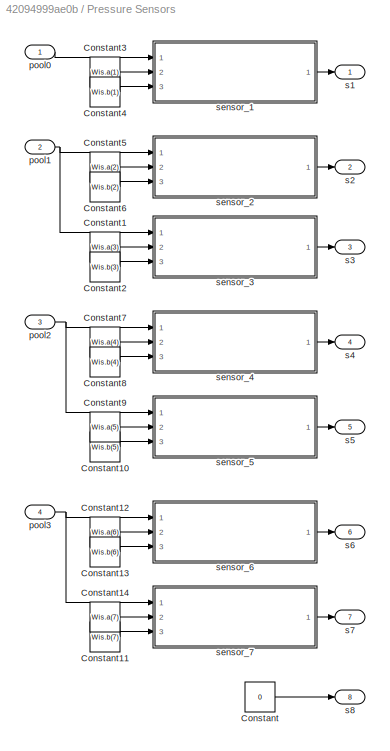
BLOCK [SubSystem] Pressure Sensors
  Ports = [4, 8]
  RequestExecContextInheritance = off
BLOCK [Constant] Pressure Sensors/Constant
  Value = 0
BLOCK [Constant] Pressure Sensors/Constant1
  Value = Wis.a(3)
BLOCK [Constant] Pressure Sensors/Constant10
  Value = Wis.b(5)
BLOCK [Constant] Pressure Sensors/Constant11
  Value = Wis.b(7)
BLOCK [Constant] Pressure Sensors/Constant12
  Value = Wis.a(6)
BLOCK [Constant] Pressure Sensors/Constant13
  Value = Wis.b(6)
BLOCK [Constant] Pressure Sensors/Constant14
  Value = Wis.a(7)
BLOCK [Constant] Pressure Sensors/Constant2
  Value = Wis.b(3)
BLOCK [Constant] Pressure Sensors/Constant3
  Value = Wis.a(1)
BLOCK [Constant] Pressure Sensors/Constant4
  Value = Wis.b(1)
BLOCK [Constant] Pressure Sensors/Constant5
  Value = Wis.a(2)
BLOCK [Constant] Pressure Sensors/Constant6
  Value = Wis.b(2)
BLOCK [Constant] Pressure Sensors/Constant7
  Value = Wis.a(4)
BLOCK [Constant] Pressure Sensors/Constant8
  Value = Wis.b(4)
BLOCK [Constant] Pressure Sensors/Constant9
  Value = Wis.a(5)
BLOCK [Inport] Pressure Sensors/pool0
  IconDisplay = Port number
BLOCK [Inport] Pressure Sensors/pool1
  IconDisplay = Port number
  Port = 2
BLOCK [Inport] Pressure Sensors/pool2
  IconDisplay = Port number
  Port = 3
BLOCK [Inport] Pressure Sensors/pool3
  IconDisplay = Port number
  Port = 4
BLOCK [Outport] Pressure Sensors/s1
  IconDisplay = Port number
BLOCK [Outport] Pressure Sensors/s2
  IconDisplay = Port number
  Port = 2
BLOCK [Outport] Pressure Sensors/s3
  IconDisplay = Port number
  Port = 3
BLOCK [Outport] Pressure Sensors/s4
  IconDisplay = Port number
  Port = 4
BLOCK [Outport] Pressure Sensors/s5
  IconDisplay = Port number
  Port = 5
BLOCK [Outport] Pressure Sensors/s6
  IconDisplay = Port number
  Port = 6
BLOCK [Outport] Pressure Sensors/s7
  IconDisplay = Port number
  Port = 7
BLOCK [Outport] Pressure Sensors/s8
  IconDisplay = Port number
  Port = 8
BLOCK [SubSystem] Pressure Sensors/sensor_1
  ErrorFcn = Stateflow.Translate.translate
  PermitHierarchicalResolution = ExplicitOnly
  Ports = [3, 1]
  RequestExecContextInheritance = off
  SFBlockType = MATLAB Function
  TreatAsAtomicUnit = on
BLOCK [Demux] Pressure Sensors/sensor_1/ Demux 
  Outputs = 1
  Ports = [1, 1]
BLOCK [S-Function] Pressure Sensors/sensor_1/ SFunction 
  EnableBusSupport = on
  FunctionName = sf_sfun
  PortCounts = [3 2]
  Ports = [3, 2]
  SFcnIsStateOwnerBlock = off
  SFunctionDeploymentMode = off
  Tag = Stateflow S-Function 5
BLOCK [Terminator] Pressure Sensors/sensor_1/ Terminator 
BLOCK [Inport] Pressure Sensors/sensor_1/a
  IconDisplay = Port number
  Port = 2
BLOCK [Inport] Pressure Sensors/sensor_1/b
  IconDisplay = Port number
  Port = 3
BLOCK [Outport] Pressure Sensors/sensor_1/pressure_sensor
  IconDisplay = Port number
BLOCK [Inport] Pressure Sensors/sensor_1/water_level
  IconDisplay = Port number
BLOCK [SubSystem] Pressure Sensors/sensor_2
  ErrorFcn = Stateflow.Translate.translate
  PermitHierarchicalResolution = ExplicitOnly
  Ports = [3, 1]
  RequestExecContextInheritance = off
  SFBlockType = MATLAB Function
  TreatAsAtomicUnit = on
BLOCK [Demux] Pressure Sensors/sensor_2/ Demux 
  Outputs = 1
  Ports = [1, 1]
BLOCK [S-Function] Pressure Sensors/sensor_2/ SFunction 
  EnableBusSupport = on
  FunctionName = sf_sfun
  PortCounts = [3 2]
  Ports = [3, 2]
  SFcnIsStateOwnerBlock = off
  SFunctionDeploymentMode = off
  Tag = Stateflow S-Function 6
BLOCK [Terminator] Pressure Sensors/sensor_2/ Terminator 
BLOCK [Inport] Pressure Sensors/sensor_2/a
  IconDisplay = Port number
  Port = 2
BLOCK [Inport] Pressure Sensors/sensor_2/b
  IconDisplay = Port number
  Port = 3
BLOCK [Outport] Pressure Sensors/sensor_2/pressure_sensor
  IconDisplay = Port number
BLOCK [Inport] Pressure Sensors/sensor_2/water_level
  IconDisplay = Port number
BLOCK [SubSystem] Pressure Sensors/sensor_3
  ErrorFcn = Stateflow.Translate.translate
  PermitHierarchicalResolution = ExplicitOnly
  Ports = [3, 1]
  RequestExecContextInheritance = off
  SFBlockType = MATLAB Function
  TreatAsAtomicUnit = on
BLOCK [Demux] Pressure Sensors/sensor_3/ Demux 
  Outputs = 1
  Ports = [1, 1]
BLOCK [S-Function] Pressure Sensors/sensor_3/ SFunction 
  EnableBusSupport = on
  FunctionName = sf_sfun
  PortCounts = [3 2]
  Ports = [3, 2]
  SFcnIsStateOwnerBlock = off
  SFunctionDeploymentMode = off
  Tag = Stateflow S-Function 7
BLOCK [Terminator] Pressure Sensors/sensor_3/ Terminator 
BLOCK [Inport] Pressure Sensors/sensor_3/a
  IconDisplay = Port number
  Port = 2
BLOCK [Inport] Pressure Sensors/sensor_3/b
  IconDisplay = Port number
  Port = 3
BLOCK [Outport] Pressure Sensors/sensor_3/pressure_sensor
  IconDisplay = Port number
BLOCK [Inport] Pressure Sensors/sensor_3/water_level
  IconDisplay = Port number
BLOCK [SubSystem] Pressure Sensors/sensor_4
  ErrorFcn = Stateflow.Translate.translate
  PermitHierarchicalResolution = ExplicitOnly
  Ports = [3, 1]
  RequestExecContextInheritance = off
  SFBlockType = MATLAB Function
  TreatAsAtomicUnit = on
BLOCK [Demux] Pressure Sensors/sensor_4/ Demux 
  Outputs = 1
  Ports = [1, 1]
BLOCK [S-Function] Pressure Sensors/sensor_4/ SFunction 
  EnableBusSupport = on
  FunctionName = sf_sfun
  PortCounts = [3 2]
  Ports = [3, 2]
  SFcnIsStateOwnerBlock = off
  SFunctionDeploymentMode = off
  Tag = Stateflow S-Function 8
BLOCK [Terminator] Pressure Sensors/sensor_4/ Terminator 
BLOCK [Inport] Pressure Sensors/sensor_4/a
  IconDisplay = Port number
  Port = 2
BLOCK [Inport] Pressure Sensors/sensor_4/b
  IconDisplay = Port number
  Port = 3
BLOCK [Outport] Pressure Sensors/sensor_4/pressure_sensor
  IconDisplay = Port number
BLOCK [Inport] Pressure Sensors/sensor_4/water_level
  IconDisplay = Port number
BLOCK [SubSystem] Pressure Sensors/sensor_5
  ErrorFcn = Stateflow.Translate.translate
  PermitHierarchicalResolution = ExplicitOnly
  Ports = [3, 1]
  RequestExecContextInheritance = off
  SFBlockType = MATLAB Function
  TreatAsAtomicUnit = on
BLOCK [Demux] Pressure Sensors/sensor_5/ Demux 
  Outputs = 1
  Ports = [1, 1]
BLOCK [S-Function] Pressure Sensors/sensor_5/ SFunction 
  EnableBusSupport = on
  FunctionName = sf_sfun
  PortCounts = [3 2]
  Ports = [3, 2]
  SFcnIsStateOwnerBlock = off
  SFunctionDeploymentMode = off
  Tag = Stateflow S-Function 9
BLOCK [Terminator] Pressure Sensors/sensor_5/ Terminator 
BLOCK [Inport] Pressure Sensors/sensor_5/a
  IconDisplay = Port number
  Port = 2
BLOCK [Inport] Pressure Sensors/sensor_5/b
  IconDisplay = Port number
  Port = 3
BLOCK [Outport] Pressure Sensors/sensor_5/pressure_sensor
  IconDisplay = Port number
BLOCK [Inport] Pressure Sensors/sensor_5/water_level
  IconDisplay = Port number
BLOCK [SubSystem] Pressure Sensors/sensor_6
  ErrorFcn = Stateflow.Translate.translate
  PermitHierarchicalResolution = ExplicitOnly
  Ports = [3, 1]
  RequestExecContextInheritance = off
  SFBlockType = MATLAB Function
  TreatAsAtomicUnit = on
BLOCK [Demux] Pressure Sensors/sensor_6/ Demux 
  Outputs = 1
  Ports = [1, 1]
BLOCK [S-Function] Pressure Sensors/sensor_6/ SFunction 
  EnableBusSupport = on
  FunctionName = sf_sfun
  PortCounts = [3 2]
  Ports = [3, 2]
  SFcnIsStateOwnerBlock = off
  SFunctionDeploymentMode = off
  Tag = Stateflow S-Function 10
BLOCK [Terminator] Pressure Sensors/sensor_6/ Terminator 
BLOCK [Inport] Pressure Sensors/sensor_6/a
  IconDisplay = Port number
  Port = 2
BLOCK [Inport] Pressure Sensors/sensor_6/b
  IconDisplay = Port number
  Port = 3
BLOCK [Outport] Pressure Sensors/sensor_6/pressure_sensor
  IconDisplay = Port number
BLOCK [Inport] Pressure Sensors/sensor_6/water_level
  IconDisplay = Port number
BLOCK [SubSystem] Pressure Sensors/sensor_7
  ErrorFcn = Stateflow.Translate.translate
  PermitHierarchicalResolution = ExplicitOnly
  Ports = [3, 1]
  RequestExecContextInheritance = off
  SFBlockType = MATLAB Function
  TreatAsAtomicUnit = on
BLOCK [Demux] Pressure Sensors/sensor_7/ Demux 
  Outputs = 1
  Ports = [1, 1]
BLOCK [S-Function] Pressure Sensors/sensor_7/ SFunction 
  EnableBusSupport = on
  FunctionName = sf_sfun
  PortCounts = [3 2]
  Ports = [3, 2]
  SFcnIsStateOwnerBlock = off
  SFunctionDeploymentMode = off
  Tag = Stateflow S-Function 11
BLOCK [Terminator] Pressure Sensors/sensor_7/ Terminator 
BLOCK [Inport] Pressure Sensors/sensor_7/a
  IconDisplay = Port number
  Port = 2
BLOCK [Inport] Pressure Sensors/sensor_7/b
  IconDisplay = Port number
  Port = 3
BLOCK [Outport] Pressure Sensors/sensor_7/pressure_sensor
  IconDisplay = Port number
BLOCK [Inport] Pressure Sensors/sensor_7/water_level
  IconDisplay = Port number
BLOCK [Reference] SPS  REF=sldrtlib/Real-Time
Synchronization
  Ports = [0, 1]
  SourceBlock = sldrtlib/Real-Time\nSynchronization
  SourceProductBaseCode = WT
  SourceProductName = Simulink Desktop Real-Time
  SourceType = Simulink Desktop Real-Time Synchronization
BLOCK [Scope] Scope
  Floating = off
  NumInputPorts = 3
  Ports = [3]
  ScopeSpecificationString = Simulink.scopes.TimeScopeBlockCfg('CurrentConfiguration', extmgr.ConfigurationSet(extmgr.Configuration('Core','General UI',true),extmgr.Configuration('Core','Source UI',true),extmgr.Configuration('Sources','WiredSimulink',true),extmgr.Configuration('Visuals','Time Domain',true,'SerializedDisplays',{struct('MinYLimReal','0.11895','MaxYLimReal','0.26456','YLabelReal','','MinYLimMag','0.11895','MaxYL...<+1396ch>
BLOCK [Scope] Scope3
  Floating = off
  NumInputPorts = 1
  Ports = [1]
  ScopeSpecificationString = Simulink.scopes.TimeScopeBlockCfg('CurrentConfiguration', extmgr.ConfigurationSet(extmgr.Configuration('Core','General UI',true),extmgr.Configuration('Core','Source UI',true),extmgr.Configuration('Sources','WiredSimulink',true,'DataLoggingVariableName','ScopeData4'),extmgr.Configuration('Visuals','Time Domain',true,'SerializedDisplays',{struct('MinYLimReal','-1.00000','MaxYLimReal','1.00000','YLab...<+1366ch>
BLOCK [Scope] Scope4
  Floating = off
  NumInputPorts = 8
  Ports = [8]
  ScopeSpecificationString = Simulink.scopes.TimeScopeBlockCfg('CurrentConfiguration', extmgr.ConfigurationSet(extmgr.Configuration('Core','General UI',true),extmgr.Configuration('Core','Source UI',true),extmgr.Configuration('Sources','WiredSimulink',true,'DataLoggingVariableName','ScopeData1'),extmgr.Configuration('Visuals','Time Domain',true,'SerializedDisplays',{struct('MinYLimReal','-2132.625','MaxYLimReal','19193.625','Y...<+1889ch>
BLOCK [Scope] Scope6
  Floating = off
  NumInputPorts = 1
  Ports = [1]
  ScopeSpecificationString = Simulink.scopes.TimeScopeBlockCfg('CurrentConfiguration', extmgr.ConfigurationSet(extmgr.Configuration('Core','General UI',true),extmgr.Configuration('Core','Source UI',true),extmgr.Configuration('Sources','WiredSimulink',true,'DataLoggingVariableName','ScopeData1'),extmgr.Configuration('Visuals','Time Domain',true,'SerializedDisplays',{struct('MinYLimReal','4294.375','MaxYLimReal','70160.625','YL...<+1433ch>
BLOCK [Scope] Scope7
  Floating = off
  NumInputPorts = 1
  Ports = [1]
  ScopeSpecificationString = Simulink.scopes.TimeScopeBlockCfg('CurrentConfiguration', extmgr.ConfigurationSet(extmgr.Configuration('Core','General UI',true),extmgr.Configuration('Core','Source UI',true),extmgr.Configuration('Sources','WiredSimulink',true,'DataLoggingVariableName','ScopeData2'),extmgr.Configuration('Visuals','Time Domain',true,'SerializedDisplays',{struct('MinYLimReal','-0.01698','MaxYLimReal','0.05279','YLab...<+1453ch>
BLOCK [Step] Step3
  After = -0.015
  SampleTime = 0
  Time = 20
BLOCK [SubSystem] Subsystem
  Ports = [8, 4]
  RequestExecContextInheritance = off
BLOCK [Constant] Subsystem/Constant
  Value = 0
BLOCK [Terminator] Subsystem/Terminator
BLOCK [SubSystem] Subsystem/actuatior1
  ErrorFcn = Stateflow.Translate.translate
  PermitHierarchicalResolution = ExplicitOnly
  Ports = [3, 1]
  RequestExecContextInheritance = off
  SFBlockType = MATLAB Function
  TreatAsAtomicUnit = on
BLOCK [Demux] Subsystem/actuatior1/ Demux 
  Outputs = 1
  Ports = [1, 1]
BLOCK [S-Function] Subsystem/actuatior1/ SFunction 
  EnableBusSupport = on
  FunctionName = sf_sfun
  PortCounts = [3 2]
  Ports = [3, 2]
  SFcnIsStateOwnerBlock = off
  SFunctionDeploymentMode = off
  Tag = Stateflow S-Function 12
BLOCK [Terminator] Subsystem/actuatior1/ Terminator 
BLOCK [Outport] Subsystem/actuatior1/flow
  IconDisplay = Port number
BLOCK [Inport] Subsystem/actuatior1/h1
  IconDisplay = Port number
  Port = 2
BLOCK [Inport] Subsystem/actuatior1/h2
  IconDisplay = Port number
  Port = 3
BLOCK [Inport] Subsystem/actuatior1/servo
  IconDisplay = Port number
BLOCK [SubSystem] Subsystem/actuatior2
  ErrorFcn = Stateflow.Translate.translate
  PermitHierarchicalResolution = ExplicitOnly
  Ports = [3, 1]
  RequestExecContextInheritance = off
  SFBlockType = MATLAB Function
  TreatAsAtomicUnit = on
BLOCK [Demux] Subsystem/actuatior2/ Demux 
  Outputs = 1
  Ports = [1, 1]
BLOCK [S-Function] Subsystem/actuatior2/ SFunction 
  EnableBusSupport = on
  FunctionName = sf_sfun
  PortCounts = [3 2]
  Ports = [3, 2]
  SFcnIsStateOwnerBlock = off
  SFunctionDeploymentMode = off
  Tag = Stateflow S-Function 13
BLOCK [Terminator] Subsystem/actuatior2/ Terminator 
BLOCK [Outport] Subsystem/actuatior2/flow
  IconDisplay = Port number
BLOCK [Inport] Subsystem/actuatior2/h1
  IconDisplay = Port number
  Port = 2
BLOCK [Inport] Subsystem/actuatior2/h2
  IconDisplay = Port number
  Port = 3
BLOCK [Inport] Subsystem/actuatior2/servo
  IconDisplay = Port number
BLOCK [SubSystem] Subsystem/actuatior3
  ErrorFcn = Stateflow.Translate.translate
  PermitHierarchicalResolution = ExplicitOnly
  Ports = [3, 1]
  RequestExecContextInheritance = off
  SFBlockType = MATLAB Function
  TreatAsAtomicUnit = on
BLOCK [Demux] Subsystem/actuatior3/ Demux 
  Outputs = 1
  Ports = [1, 1]
BLOCK [S-Function] Subsystem/actuatior3/ SFunction 
  EnableBusSupport = on
  FunctionName = sf_sfun
  PortCounts = [3 2]
  Ports = [3, 2]
  SFcnIsStateOwnerBlock = off
  SFunctionDeploymentMode = off
  Tag = Stateflow S-Function 14
BLOCK [Terminator] Subsystem/actuatior3/ Terminator 
BLOCK [Outport] Subsystem/actuatior3/flow
  IconDisplay = Port number
BLOCK [Inport] Subsystem/actuatior3/h1
  IconDisplay = Port number
  Port = 2
BLOCK [Inport] Subsystem/actuatior3/h2
  IconDisplay = Port number
  Port = 3
BLOCK [Inport] Subsystem/actuatior3/servo
  IconDisplay = Port number
BLOCK [Outport] Subsystem/flow0_1
  IconDisplay = Port number
BLOCK [Outport] Subsystem/flow1_2
  IconDisplay = Port number
  Port = 2
BLOCK [Outport] Subsystem/flow2_3
  IconDisplay = Port number
  Port = 3
BLOCK [Outport] Subsystem/flow3_4
  IconDisplay = Port number
  Port = 4
BLOCK [Inport] Subsystem/pool0
  IconDisplay = Port number
BLOCK [Inport] Subsystem/pool1
  IconDisplay = Port number
  Port = 2
BLOCK [Inport] Subsystem/pool2
  IconDisplay = Port number
  Port = 3
BLOCK [Inport] Subsystem/pool3
  IconDisplay = Port number
  Port = 4
BLOCK [Inport] Subsystem/servo1
  IconDisplay = Port number
  Port = 5
BLOCK [Inport] Subsystem/servo2
  IconDisplay = Port number
  Port = 6
BLOCK [Inport] Subsystem/servo3
  IconDisplay = Port number
  Port = 7
BLOCK [Inport] Subsystem/servo4
  IconDisplay = Port number
  Port = 8
BLOCK [Terminator] Terminator
BLOCK [ToWorkspace] To Workspace
  FixptAsFi = on
  MaxDataPoints = inf
  Ports = [1]
  SampleTime = -1
  SaveFormat = Timeseries
  VariableName = servo
BLOCK [ToWorkspace] To Workspace1
  FixptAsFi = on
  MaxDataPoints = inf
  Ports = [1]
  SampleTime = -1
  SaveFormat = Timeseries
  VariableName = radio_on
BLOCK [ToWorkspace] To Workspace10
  FixptAsFi = on
  MaxDataPoints = inf
  Ports = [1]
  SampleTime = -1
  SaveFormat = Timeseries
  VariableName = level
BLOCK [ToWorkspace] To Workspace2
  FixptAsFi = on
  MaxDataPoints = inf
  Ports = [1]
  SampleTime = -1
  SaveFormat = Timeseries
  VariableName = epoch
BLOCK [ToWorkspace] To Workspace9
  FixptAsFi = on
  MaxDataPoints = inf
  Ports = [1]
  SampleTime = -1
  SaveFormat = Timeseries
  VariableName = flow
BLOCK [Scope] actual local control
  Floating = off
  NumInputPorts = 3
  Ports = [3]
  ScopeSpecificationString = Simulink.scopes.TimeScopeBlockCfg('CurrentConfiguration', extmgr.ConfigurationSet(extmgr.Configuration('Core','General UI',true),extmgr.Configuration('Core','Source UI',true),extmgr.Configuration('Sources','WiredSimulink',true,'DataLoggingVariableName','ScopeData1'),extmgr.Configuration('Visuals','Time Domain',true,'SerializedDisplays',{struct('MinYLimReal','-9.94324','MaxYLimReal','9.99491','YLab...<+1422ch>
BLOCK [ManualSwitch] actuate gate // flow
BLOCK [ManualSwitch] pool sim digita delay // pade approx
ANNOTATION (root): // convert scaled flow back to m3/min
ANNOTATION Firefly1: //Matlab sends second value first!
ANNOTATION Firefly2: // TODO: is delay necessary?
ANNOTATION Firefly2: //Matlab sends second value first!
ANNOTATION Firefly3: // TODO: is delay necessary?
ANNOTATION Firefly3: //Matlab sends second value first!
ANNOTATION Firefly4: // TODO: is delay necessary?
ANNOTATION Firefly4: //Matlab sends second value first!
ANNOTATION Pool simulation (P_i) - Pade approx delay/Combined pools with Pade delay and disturbance: x
ANNOTATION Pool simulation (P_i) - Pade approx delay/Combined pools with Pade delay and disturbance: x_n+1
ANNOTATION Pool simulation (P_i) - digital delay/pool0: //TODO: remove overflow from pool
ANNOTATION Subsystem: // Gate 4 not implemented. Assume zero flow
NET Add:1 -> Scope7:1, actuate gate // flow:2
LINE Constant3:1 -> Pool simulation (P_i) - digital delay:1
LINE Constant4:1 -> Pool simulation (P_i) - digital delay:3
LINE Constant5:1 -> Pool simulation (P_i) - digital delay:4
LINE Constant:1 -> Add:2
NET Demux1:1 -> Goto:1, Scope:1
NET Demux1:2 -> Goto1:1, Scope:2
NET Demux1:3 -> Goto2:1, Scope:3
LINE Demux2:1 -> actual local control:1
LINE Demux2:2 -> actual local control:2
LINE Demux2:3 -> actual local control:3
NET Firefly1/Bit Shift:1 -> Firefly1/Scope2:1, Firefly1/radio_on:1
LINE Firefly1/Bitwise Operator:1 -> Firefly1/Cast To Double:1
NET Firefly1/Cast To Double:1 -> Firefly1/Scope1:1, Firefly1/servo :1
LINE Firefly1/Data Type Conversion1:1 -> Firefly1/Mux3:2
LINE Firefly1/Data Type Conversion:1 -> Firefly1/Mux3:1
NET Firefly1/Demux:1 -> Firefly1/Bit Shift:1, Firefly1/Bitwise Operator:1
NET Firefly1/Demux:2 -> Firefly1/Scope:1, Firefly1/flow:1
NET Firefly1/Mux3:1 -> Firefly1/Scope5:1, Firefly1/Serial Send:1
LINE Firefly1/Serial Receive:1 -> Firefly1/Demux:1
LINE Firefly1/Serial Receive:2 -> Firefly1/Scope6:1
LINE Firefly1/primary_sensor:1 -> Firefly1/Data Type Conversion1:1
LINE Firefly1/secondary_sensor:1 -> Firefly1/Data Type Conversion:1
NET Firefly1:1 -> Mux3:1, Subsystem:5
LINE Firefly1:2 -> Mux4:1
LINE Firefly1:3 -> Mux5:1
NET Firefly2/Bit Shift:1 -> Firefly2/Scope2:1, Firefly2/radio_on:1
LINE Firefly2/Bitwise Operator:1 -> Firefly2/Cast To Double:1
NET Firefly2/Cast To Double:1 -> Firefly2/Scope1:1, Firefly2/servo :1
LINE Firefly2/Data Type Conversion1:1 -> Firefly2/Mux3:2
LINE Firefly2/Data Type Conversion:1 -> Firefly2/Mux3:1
NET Firefly2/Demux:1 -> Firefly2/Bit Shift:1, Firefly2/Bitwise Operator:1
LINE Firefly2/Demux:2 -> Firefly2/epoch:1
NET Firefly2/Mux3:1 -> Firefly2/Scope5:1, Firefly2/Serial Send:1
NET Firefly2/Serial Receive:1 -> Firefly2/Demux:1, Firefly2/Scope3:1
LINE Firefly2/Serial Receive:2 -> Firefly2/Scope6:1
LINE Firefly2/primary_sensor:1 -> Firefly2/Data Type Conversion1:1
LINE Firefly2/secondary_sensor:1 -> Firefly2/Data Type Conversion:1
NET Firefly2:1 -> Mux3:2, Subsystem:6
LINE Firefly2:2 -> Mux4:2
LINE Firefly2:3 -> Mux5:2
NET Firefly3/Bit Shift:1 -> Firefly3/Scope2:1, Firefly3/radio_on:1
LINE Firefly3/Bitwise Operator:1 -> Firefly3/Cast To Double:1
NET Firefly3/Cast To Double:1 -> Firefly3/Scope1:1, Firefly3/servo :1
LINE Firefly3/Data Type Conversion1:1 -> Firefly3/Mux3:2
LINE Firefly3/Data Type Conversion:1 -> Firefly3/Mux3:1
NET Firefly3/Demux:1 -> Firefly3/Bit Shift:1, Firefly3/Bitwise Operator:1
LINE Firefly3/Demux:2 -> Firefly3/epoch:1
NET Firefly3/Mux3:1 -> Firefly3/Scope5:1, Firefly3/Serial Send:1
NET Firefly3/Serial Receive:1 -> Firefly3/Demux:1, Firefly3/Scope3:1
LINE Firefly3/Serial Receive:2 -> Firefly3/Scope6:1
LINE Firefly3/primary_sensor:1 -> Firefly3/Data Type Conversion1:1
LINE Firefly3/secondary_sensor:1 -> Firefly3/Data Type Conversion:1
NET Firefly3:1 -> Mux3:3, Subsystem:7
LINE Firefly3:2 -> Mux4:3
LINE Firefly3:3 -> Mux5:3
LINE Firefly4/Bit Shift:1 -> Firefly4/Scope2:1
LINE Firefly4/Bitwise Operator:1 -> Firefly4/Cast To Double:1
NET Firefly4/Cast To Double:1 -> Firefly4/Scope1:1, Firefly4/servo :1
LINE Firefly4/Data Type Conversion1:1 -> Firefly4/Mux3:2
LINE Firefly4/Data Type Conversion:1 -> Firefly4/Mux3:1
NET Firefly4/Demux:1 -> Firefly4/Bit Shift:1, Firefly4/Bitwise Operator:1
LINE Firefly4/Demux:2 -> Firefly4/Terminator:1
NET Firefly4/Mux3:1 -> Firefly4/Scope5:1, Firefly4/Serial Send:1
NET Firefly4/Serial Receive:1 -> Firefly4/Demux:1, Firefly4/Scope3:1
LINE Firefly4/Serial Receive:2 -> Firefly4/Scope6:1
LINE Firefly4/primary_sensor:1 -> Firefly4/Data Type Conversion1:1
LINE Firefly4/secondary_sensor:1 -> Firefly4/Data Type Conversion:1
LINE Firefly4:1 -> Subsystem:8
LINE From1:1 -> Subsystem:2
LINE From2:1 -> Subsystem:3
LINE From3:1 -> Subsystem:4
LINE From4:1 -> Pressure Sensors:1
LINE From5:1 -> Pressure Sensors:2
LINE From6:1 -> Pressure Sensors:3
LINE From7:1 -> Pressure Sensors:4
LINE From:1 -> Subsystem:1
LINE Gain:1 -> Add:1
LINE Mux1:1 -> actuate gate // flow:1
LINE Mux3:1 -> To Workspace:1
LINE Mux4:1 -> To Workspace1:1
NET Mux5:1 -> Gain:1, Scope6:1, To Workspace2:1
NET Pool simulation (P_i) - Pade approx delay/Combined pools with Pade delay and disturbance/Add1:1 -> Pool simulation (P_i) - Pade approx delay/Combined pools with Pade delay and disturbance/Scope:1, Pool simulation (P_i) - Pade approx delay/Combined pools with Pade delay and disturbance/level:1
LINE Pool simulation (P_i) - Pade approx delay/Combined pools with Pade delay and disturbance/Add2:1 -> Pool simulation (P_i) - Pade approx delay/Combined pools with Pade delay and disturbance/Delay:1
LINE Pool simulation (P_i) - Pade approx delay/Combined pools with Pade delay and disturbance/Add:1 -> Pool simulation (P_i) - Pade approx delay/Combined pools with Pade delay and disturbance/Add2:1
LINE Pool simulation (P_i) - Pade approx delay/Combined pools with Pade delay and disturbance/Ax:1 -> Pool simulation (P_i) - Pade approx delay/Combined pools with Pade delay and disturbance/Add:1
LINE Pool simulation (P_i) - Pade approx delay/Combined pools with Pade delay and disturbance/Bu:1 -> Pool simulation (P_i) - Pade approx delay/Combined pools with Pade delay and disturbance/Add:2
LINE Pool simulation (P_i) - Pade approx delay/Combined pools with Pade delay and disturbance/Cx:1 -> Pool simulation (P_i) - Pade approx delay/Combined pools with Pade delay and disturbance/Add1:1
NET Pool simulation (P_i) - Pade approx delay/Combined pools with Pade delay and disturbance/Delay:1 -> Pool simulation (P_i) - Pade approx delay/Combined pools with Pade delay and disturbance/Ax:1, Pool simulation (P_i) - Pade approx delay/Combined pools with Pade delay and disturbance/Cx:1, Pool simulation (P_i) - Pade approx delay/Combined pools with Pade delay and disturbance/To Workspace:1, Pool simulation (P_i) - Pade approx delay/Combined pools with Pade delay and disturbance/x_contr:1
LINE Pool simulation (P_i) - Pade approx delay/Combined pools with Pade delay and disturbance/Du:1 -> Pool simulation (P_i) - Pade approx delay/Combined pools with Pade delay and disturbance/Add1:2
NET Pool simulation (P_i) - Pade approx delay/Combined pools with Pade delay and disturbance/Eu_dist:1 -> Pool simulation (P_i) - Pade approx delay/Combined pools with Pade delay and disturbance/Add2:2, Pool simulation (P_i) - Pade approx delay/Combined pools with Pade delay and disturbance/Scope1:1
LINE Pool simulation (P_i) - Pade approx delay/Combined pools with Pade delay and disturbance/disturbance:1 -> Pool simulation (P_i) - Pade approx delay/Combined pools with Pade delay and disturbance/Eu_dist:1
NET Pool simulation (P_i) - Pade approx delay/Combined pools with Pade delay and disturbance/requested flow:1 -> Pool simulation (P_i) - Pade approx delay/Combined pools with Pade delay and disturbance/Bu:1, Pool simulation (P_i) - Pade approx delay/Combined pools with Pade delay and disturbance/Du:1
LINE Pool simulation (P_i) - Pade approx delay/Combined pools with Pade delay and disturbance:1 -> Pool simulation (P_i) - Pade approx delay/no disturbance // disturbance (pools):2
LINE Pool simulation (P_i) - Pade approx delay/Discrete State-Space:1 -> Pool simulation (P_i) - Pade approx delay/no disturbance // disturbance (pools):1
LINE Pool simulation (P_i) - Pade approx delay/no disturbance // disturbance (pools):1 -> Pool simulation (P_i) - Pade approx delay/water level:1
NET Pool simulation (P_i) - Pade approx delay/requested flow:1 -> Pool simulation (P_i) - Pade approx delay/Combined pools with Pade delay and disturbance:1, Pool simulation (P_i) - Pade approx delay/Discrete State-Space:1
LINE Pool simulation (P_i) - Pade approx delay:1 -> pool sim digita delay // pade approx:2
LINE Pool simulation (P_i) - digital delay/Constant2:1 -> Pool simulation (P_i) - digital delay/pool0:2
LINE Pool simulation (P_i) - digital delay/Delay1:1 -> Pool simulation (P_i) - digital delay/Sum4:1
LINE Pool simulation (P_i) - digital delay/Delay2:1 -> Pool simulation (P_i) - digital delay/Sum6:1
LINE Pool simulation (P_i) - digital delay/Delay3:1 -> Pool simulation (P_i) - digital delay/Sum5:1
NET Pool simulation (P_i) - digital delay/Demux6:1 -> Pool simulation (P_i) - digital delay/Delay1:1, Pool simulation (P_i) - digital delay/Scope2:1, Pool simulation (P_i) - digital delay/pool0:1
NET Pool simulation (P_i) - digital delay/Demux6:2 -> Pool simulation (P_i) - digital delay/Delay2:1, Pool simulation (P_i) - digital delay/Sum4:2
NET Pool simulation (P_i) - digital delay/Demux6:3 -> Pool simulation (P_i) - digital delay/Delay3:1, Pool simulation (P_i) - digital delay/Sum6:2
LINE Pool simulation (P_i) - digital delay/Mux2:1 -> Pool simulation (P_i) - digital delay/level 1,2,3:1
LINE Pool simulation (P_i) - digital delay/Sum4:1 -> Pool simulation (P_i) - digital delay/pool1:1
LINE Pool simulation (P_i) - digital delay/Sum5:1 -> Pool simulation (P_i) - digital delay/pool3:1
LINE Pool simulation (P_i) - digital delay/Sum6:1 -> Pool simulation (P_i) - digital delay/pool2:1
LINE Pool simulation (P_i) - digital delay/disturbance pool 3:1 -> Pool simulation (P_i) - digital delay/Sum5:2
LINE Pool simulation (P_i) - digital delay/flow:1 -> Pool simulation (P_i) - digital delay/Demux6:1
LINE Pool simulation (P_i) - digital delay/init 1:1 -> Pool simulation (P_i) - digital delay/pool1:2
LINE Pool simulation (P_i) - digital delay/init 2:1 -> Pool simulation (P_i) - digital delay/pool2:2
LINE Pool simulation (P_i) - digital delay/init 3:1 -> Pool simulation (P_i) - digital delay/pool3:2
LINE Pool simulation (P_i) - digital delay/pool0/Add:1 -> Pool simulation (P_i) - digital delay/pool0/pool1:1
LINE Pool simulation (P_i) - digital delay/pool0/Constant:1 -> Pool simulation (P_i) - digital delay/pool0/pool1:2
LINE Pool simulation (P_i) - digital delay/pool0/Saturation:1 -> Pool simulation (P_i) - digital delay/pool0/level:1
LINE Pool simulation (P_i) - digital delay/pool0/inflow:1 -> Pool simulation (P_i) - digital delay/pool0/Add:2
LINE Pool simulation (P_i) - digital delay/pool0/outflow:1 -> Pool simulation (P_i) - digital delay/pool0/Add:1
LINE Pool simulation (P_i) - digital delay/pool0/pool1:1 -> Pool simulation (P_i) - digital delay/pool0/Saturation:1
NET Pool simulation (P_i) - digital delay/pool0:1 -> Pool simulation (P_i) - digital delay/Scope1:1, Pool simulation (P_i) - digital delay/level 0:1
LINE Pool simulation (P_i) - digital delay/pool1/Gain:1 -> Pool simulation (P_i) - digital delay/pool1/P1:2
LINE Pool simulation (P_i) - digital delay/pool1/P1:1 -> Pool simulation (P_i) - digital delay/pool1/level:1
LINE Pool simulation (P_i) - digital delay/pool1/flow:1 -> Pool simulation (P_i) - digital delay/pool1/P1:1
LINE Pool simulation (P_i) - digital delay/pool1/initial_level:1 -> Pool simulation (P_i) - digital delay/pool1/Gain:1
LINE Pool simulation (P_i) - digital delay/pool1:1 -> Pool simulation (P_i) - digital delay/Mux2:1
LINE Pool simulation (P_i) - digital delay/pool2/Gain:1 -> Pool simulation (P_i) - digital delay/pool2/P2:2
LINE Pool simulation (P_i) - digital delay/pool2/P2:1 -> Pool simulation (P_i) - digital delay/pool2/level:1
LINE Pool simulation (P_i) - digital delay/pool2/flow:1 -> Pool simulation (P_i) - digital delay/pool2/P2:1
LINE Pool simulation (P_i) - digital delay/pool2/initial_level:1 -> Pool simulation (P_i) - digital delay/pool2/Gain:1
LINE Pool simulation (P_i) - digital delay/pool2:1 -> Pool simulation (P_i) - digital delay/Mux2:2
LINE Pool simulation (P_i) - digital delay/pool3/Gain:1 -> Pool simulation (P_i) - digital delay/pool3/P3:2
LINE Pool simulation (P_i) - digital delay/pool3/P3:1 -> Pool simulation (P_i) - digital delay/pool3/level:1
LINE Pool simulation (P_i) - digital delay/pool3/flow:1 -> Pool simulation (P_i) - digital delay/pool3/P3:1
LINE Pool simulation (P_i) - digital delay/pool3/initail_level :1 -> Pool simulation (P_i) - digital delay/pool3/Gain:1
LINE Pool simulation (P_i) - digital delay/pool3:1 -> Pool simulation (P_i) - digital delay/Mux2:3
LINE Pool simulation (P_i) - digital delay:1 -> Goto3:1
LINE Pool simulation (P_i) - digital delay:2 -> pool sim digita delay // pade approx:1
LINE Pressure Sensors/Constant10:1 -> Pressure Sensors/sensor_5:3
LINE Pressure Sensors/Constant11:1 -> Pressure Sensors/sensor_7:3
LINE Pressure Sensors/Constant12:1 -> Pressure Sensors/sensor_6:2
LINE Pressure Sensors/Constant13:1 -> Pressure Sensors/sensor_6:3
LINE Pressure Sensors/Constant14:1 -> Pressure Sensors/sensor_7:2
LINE Pressure Sensors/Constant1:1 -> Pressure Sensors/sensor_3:2
LINE Pressure Sensors/Constant2:1 -> Pressure Sensors/sensor_3:3
LINE Pressure Sensors/Constant3:1 -> Pressure Sensors/sensor_1:2
LINE Pressure Sensors/Constant4:1 -> Pressure Sensors/sensor_1:3
LINE Pressure Sensors/Constant5:1 -> Pressure Sensors/sensor_2:2
LINE Pressure Sensors/Constant6:1 -> Pressure Sensors/sensor_2:3
LINE Pressure Sensors/Constant7:1 -> Pressure Sensors/sensor_4:2
LINE Pressure Sensors/Constant8:1 -> Pressure Sensors/sensor_4:3
LINE Pressure Sensors/Constant9:1 -> Pressure Sensors/sensor_5:2
LINE Pressure Sensors/Constant:1 -> Pressure Sensors/s8:1
LINE Pressure Sensors/pool0:1 -> Pressure Sensors/sensor_1:1
NET Pressure Sensors/pool1:1 -> Pressure Sensors/sensor_2:1, Pressure Sensors/sensor_3:1
NET Pressure Sensors/pool2:1 -> Pressure Sensors/sensor_4:1, Pressure Sensors/sensor_5:1
NET Pressure Sensors/pool3:1 -> Pressure Sensors/sensor_6:1, Pressure Sensors/sensor_7:1
LINE Pressure Sensors/sensor_1:1 -> Pressure Sensors/s1:1
LINE Pressure Sensors/sensor_2:1 -> Pressure Sensors/s2:1
LINE Pressure Sensors/sensor_3:1 -> Pressure Sensors/s3:1
LINE Pressure Sensors/sensor_4:1 -> Pressure Sensors/s4:1
LINE Pressure Sensors/sensor_5:1 -> Pressure Sensors/s5:1
LINE Pressure Sensors/sensor_6:1 -> Pressure Sensors/s6:1
LINE Pressure Sensors/sensor_7:1 -> Pressure Sensors/s7:1
NET Pressure Sensors:1 -> Firefly1:1, Scope4:1
NET Pressure Sensors:2 -> Firefly1:2, Scope4:2
NET Pressure Sensors:3 -> Firefly2:1, Scope4:3
NET Pressure Sensors:4 -> Firefly2:2, Scope4:4
NET Pressure Sensors:5 -> Firefly3:1, Scope4:5
NET Pressure Sensors:6 -> Firefly3:2, Scope4:6
NET Pressure Sensors:7 -> Firefly4:1, Scope4:7
NET Pressure Sensors:8 -> Firefly4:2, Scope4:8
LINE SPS:1 -> Scope3:1
LINE Step3:1 -> Pool simulation (P_i) - digital delay:5
LINE Subsystem/Constant:1 -> Subsystem/flow3_4:1
LINE Subsystem/actuatior1:1 -> Subsystem/flow0_1:1
LINE Subsystem/actuatior2:1 -> Subsystem/flow1_2:1
LINE Subsystem/actuatior3:1 -> Subsystem/flow2_3:1
LINE Subsystem/pool0:1 -> Subsystem/actuatior1:2
NET Subsystem/pool1:1 -> Subsystem/actuatior1:3, Subsystem/actuatior2:2
NET Subsystem/pool2:1 -> Subsystem/actuatior2:3, Subsystem/actuatior3:2
LINE Subsystem/pool3:1 -> Subsystem/actuatior3:3
LINE Subsystem/servo1:1 -> Subsystem/actuatior1:1
LINE Subsystem/servo2:1 -> Subsystem/actuatior2:1
LINE Subsystem/servo3:1 -> Subsystem/actuatior3:1
LINE Subsystem/servo4:1 -> Subsystem/Terminator:1
LINE Subsystem:1 -> Mux1:1
LINE Subsystem:2 -> Mux1:2
LINE Subsystem:3 -> Mux1:3
LINE Subsystem:4 -> Terminator:1
NET actuate gate // flow:1 -> Demux2:1, Pool simulation (P_i) - Pade approx delay:1, Pool simulation (P_i) - digital delay:2, To Workspace9:1
NET pool sim digita delay // pade approx:1 -> Demux1:1, To Workspace10:1
note: NET lines group one-source signal fan-out (src -> all destinations, sorted); 1:1 wires keep LINE
CHART Pressure Sensors/sensor_1 states=1 transitions=1
  STATE_LABEL 'eML_blk_kernel()'
  STATE_LABEL 'SCRIPT:\nfunction pressure_sensor = fcn(water_level, a, b)\n\npressure_sensor = m2pressure(water_level, a, b);'
CHART Pressure Sensors/sensor_2 states=1 transitions=1
  STATE_LABEL 'eML_blk_kernel()'
  STATE_LABEL 'SCRIPT:\nfunction pressure_sensor = fcn(water_level, a, b)\n\npressure_sensor = m2pressure(water_level, a, b);'
CHART Pressure Sensors/sensor_3 states=1 transitions=1
  STATE_LABEL 'eML_blk_kernel()'
  STATE_LABEL 'SCRIPT:\nfunction pressure_sensor = fcn(water_level, a, b)\n\npressure_sensor = m2pressure(water_level, a, b);'
CHART Pressure Sensors/sensor_4 states=1 transitions=1
  STATE_LABEL 'eML_blk_kernel()'
  STATE_LABEL 'SCRIPT:\nfunction pressure_sensor = fcn(water_level, a, b)\n\npressure_sensor = m2pressure(water_level, a, b);'
CHART Pressure Sensors/sensor_5 states=1 transitions=1
  STATE_LABEL 'eML_blk_kernel()'
  STATE_LABEL 'SCRIPT:\nfunction pressure_sensor = fcn(water_level, a, b)\n\npressure_sensor = m2pressure(water_level, a, b);'
CHART Pressure Sensors/sensor_6 states=1 transitions=1
  STATE_LABEL 'eML_blk_kernel()'
  STATE_LABEL 'SCRIPT:\nfunction pressure_sensor = fcn(water_level, a, b)\n\npressure_sensor = m2pressure(water_level, a, b);'
CHART Pressure Sensors/sensor_7 states=1 transitions=1
  STATE_LABEL 'eML_blk_kernel()'
  STATE_LABEL 'SCRIPT:\nfunction pressure_sensor = fcn(water_level, a, b)\n\npressure_sensor = m2pressure(water_level, a, b);'
CHART Subsystem/actuatior1 states=1 transitions=1
  STATE_LABEL 'eML_blk_kernel()'
  STATE_LABEL 'SCRIPT:\nfunction flow = fcn(servo, h1, h2)\n\nflow = gate2flow(servo, h1, h2);\n'
CHART Subsystem/actuatior2 states=1 transitions=1
  STATE_LABEL 'eML_blk_kernel()'
  STATE_LABEL 'SCRIPT:\nfunction flow = fcn(servo, h1, h2)\n\nflow = gate2flow(servo, h1, h2);\n'
CHART Subsystem/actuatior3 states=1 transitions=1
  STATE_LABEL 'eML_blk_kernel()'
  STATE_LABEL 'SCRIPT:\nfunction flow = fcn(servo, h1, h2)\n\nflow = gate2flow(servo, h1, h2);\n'
